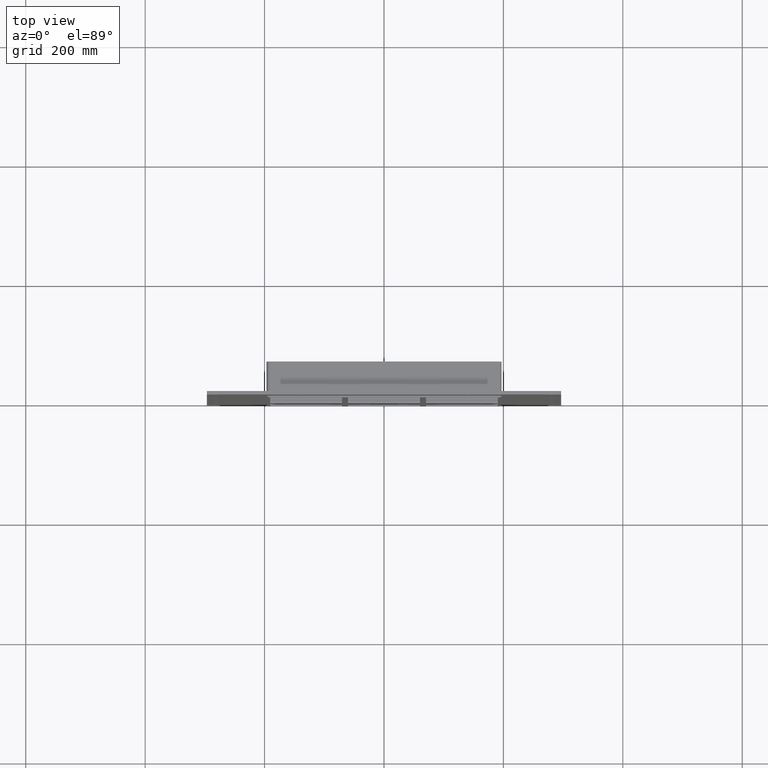
[diagram: clean part render]
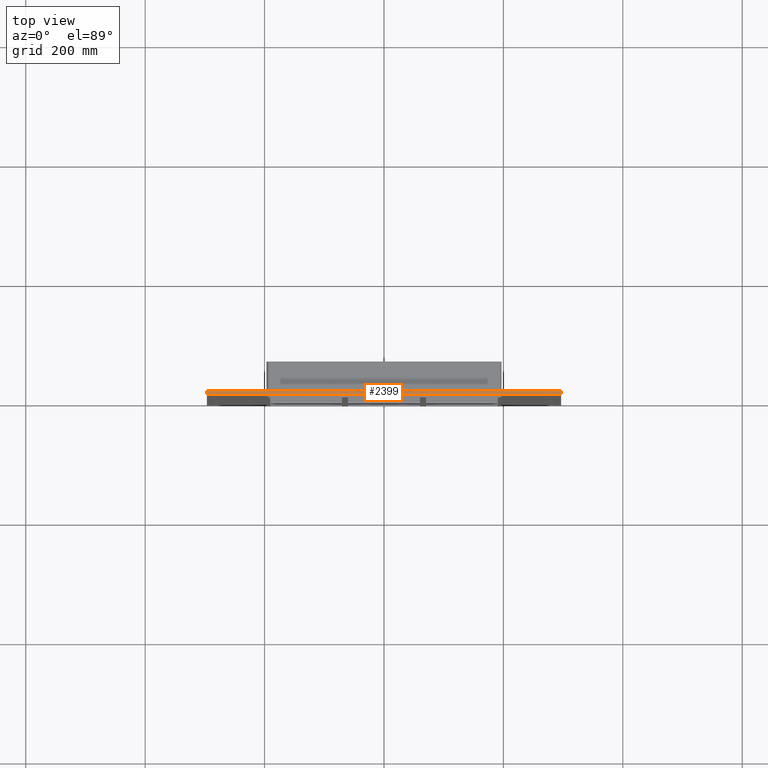
[diagram: same view with one face highlighted and labeled with its STEP entity id]
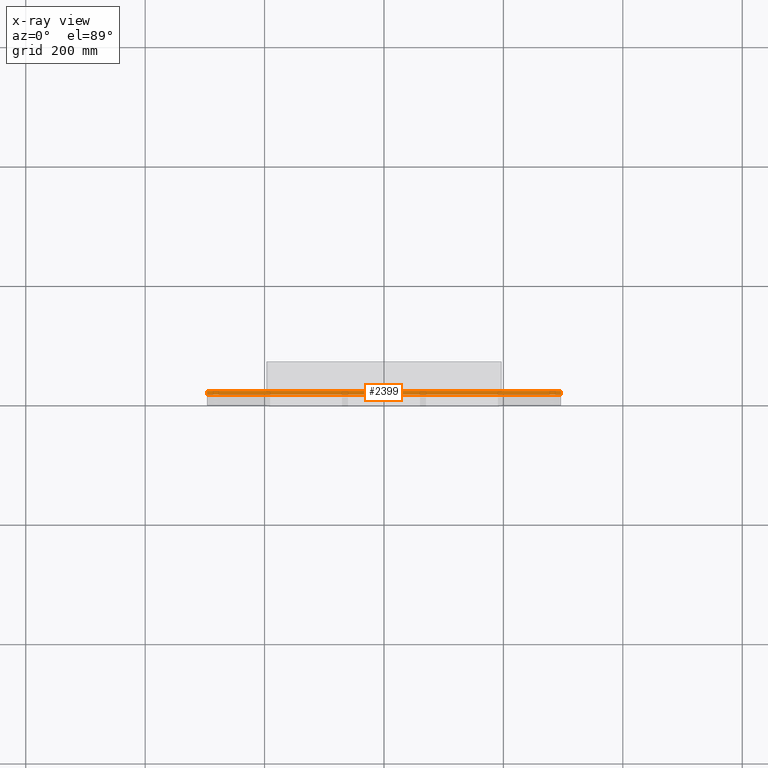
[diagram: x-ray of the same camera — body ghosted, the highlighted face saturated]
A machine part, top view. The second image highlights one B-rep face of the part: STEP entity #2399.
The next image is the same camera in x-ray: the body ghosted, the highlighted face saturated — about 0% of this face is hidden behind the body in this view.
In plain terms, the highlighted planar face has unit normal (0, 0, 1).
Its self-contained STEP definition (entity closure, byte-faithful):
#1997=CARTESIAN_POINT('',(-296.75000000000006,6.000000000000001,535.00000000000011));
#1998=VERTEX_POINT('',#1997);
#1999=CARTESIAN_POINT('',(296.75000000000006,6.000000000000001,535.00000000000011));
#2000=VERTEX_POINT('',#1999);
#2001=CARTESIAN_POINT('',(-296.75000000000006,6.000000000000001,535.00000000000011));
#2002=DIRECTION('',(1.0,0.0,0.0));
#2003=VECTOR('',#2002,593.50000000000011);
#2004=LINE('',#2001,#2003);
#2005=EDGE_CURVE('',#1998,#2000,#2004,.T.);
#2167=CARTESIAN_POINT('',(-296.75000000000006,0.0,535.00000000000011));
#2168=VERTEX_POINT('',#2167);
#2169=CARTESIAN_POINT('',(296.75000000000006,0.0,535.00000000000011));
#2170=VERTEX_POINT('',#2169);
#2171=CARTESIAN_POINT('',(-296.75000000000006,0.0,535.00000000000011));
#2172=DIRECTION('',(1.0,0.0,0.0));
#2173=VECTOR('',#2172,593.50000000000011);
#2174=LINE('',#2171,#2173);
#2175=EDGE_CURVE('',#2168,#2170,#2174,.T.);
#2338=CARTESIAN_POINT('',(-296.75000000000006,0.0,535.00000000000011));
#2339=DIRECTION('',(0.0,1.0,0.0));
#2340=VECTOR('',#2339,6.000000000000001);
#2341=LINE('',#2338,#2340);
#2342=EDGE_CURVE('',#2168,#1998,#2341,.T.);
#2379=CARTESIAN_POINT('',(296.75000000000006,0.0,535.00000000000011));
#2380=DIRECTION('',(0.0,1.0,0.0));
#2381=VECTOR('',#2380,6.000000000000001);
#2382=LINE('',#2379,#2381);
#2383=EDGE_CURVE('',#2170,#2000,#2382,.T.);
#2388=CARTESIAN_POINT('',(-296.75000000000006,0.0,535.00000000000011));
#2389=DIRECTION('',(0.0,0.0,1.0));
#2390=DIRECTION('',(1.0,0.0,0.0));
#2391=AXIS2_PLACEMENT_3D('',#2388,#2389,#2390);
#2392=PLANE('',#2391);
#2393=ORIENTED_EDGE('',*,*,#2175,.T.);
#2394=ORIENTED_EDGE('',*,*,#2383,.T.);
#2395=ORIENTED_EDGE('',*,*,#2005,.F.);
#2396=ORIENTED_EDGE('',*,*,#2342,.F.);
#2397=EDGE_LOOP('',(#2393,#2394,#2395,#2396));
#2398=FACE_OUTER_BOUND('',#2397,.T.);
#2399=ADVANCED_FACE('',(#2398),#2392,.T.);